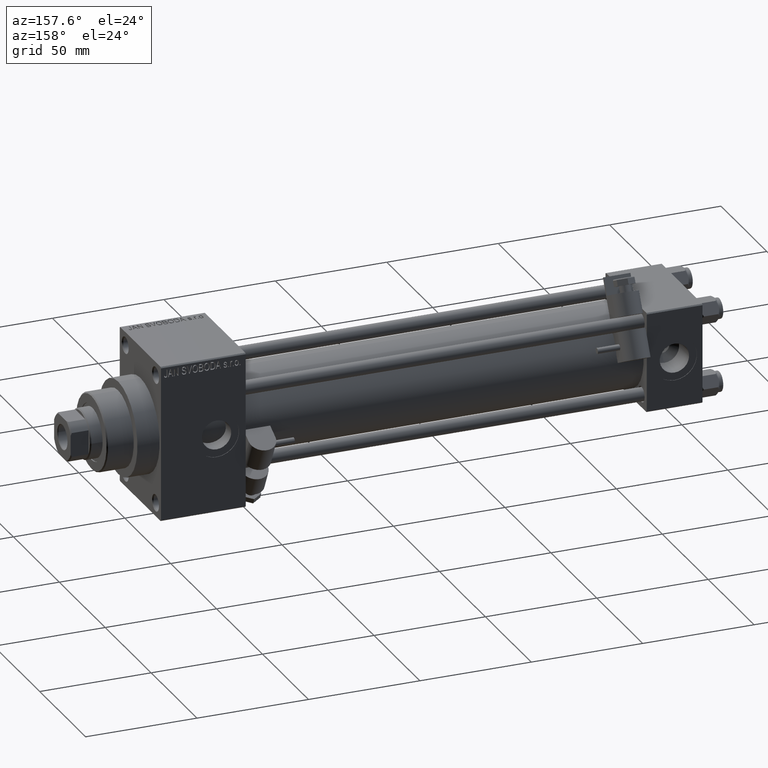
[diagram: clean part render]
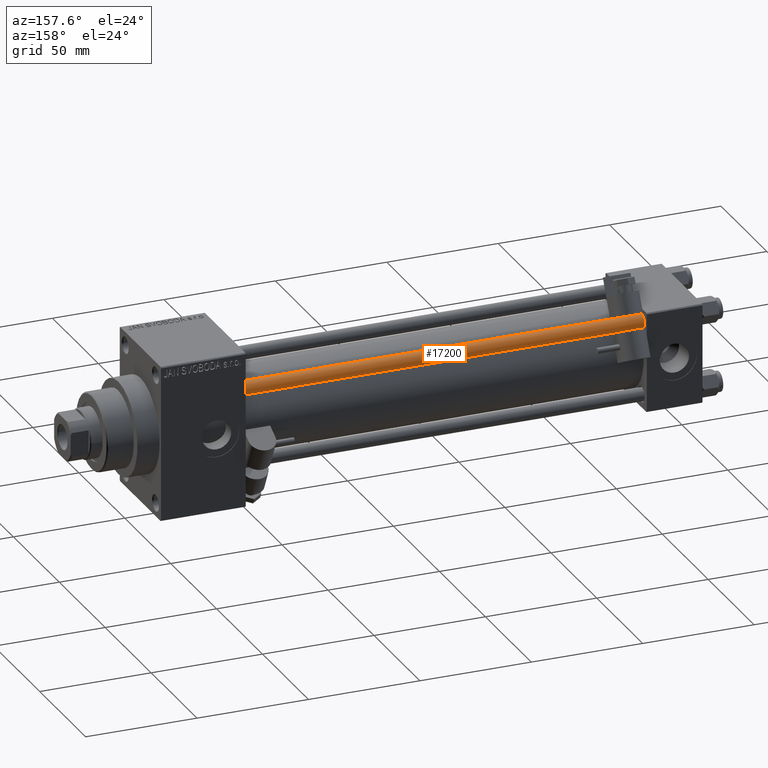
[diagram: same view with one face highlighted and labeled with its STEP entity id]
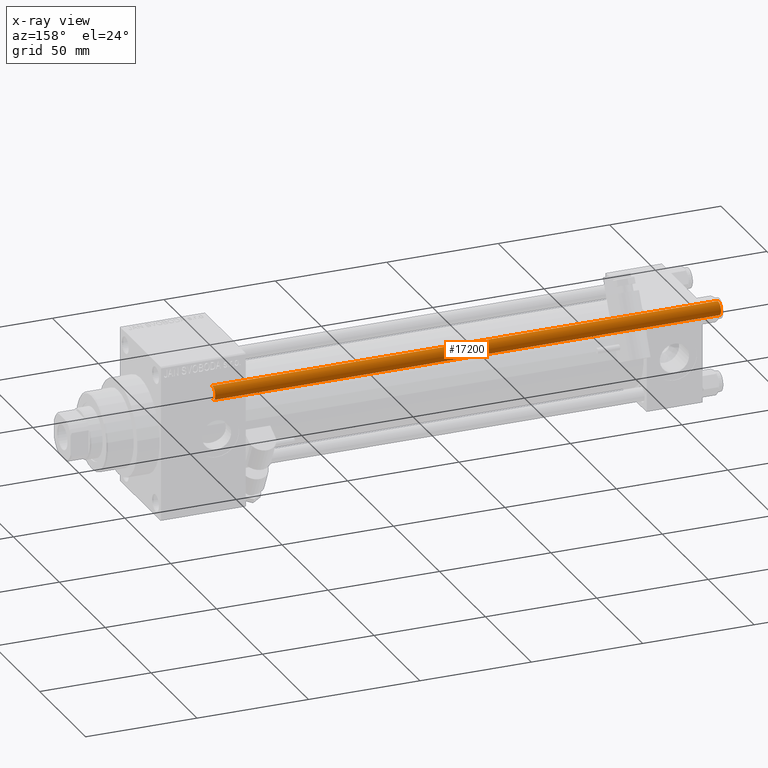
[diagram: x-ray of the same camera — body ghosted, the highlighted face saturated]
A machine part, auxiliary view. The second image highlights one B-rep face of the part: STEP entity #17200.
The next image is the same camera in x-ray: the body ghosted, the highlighted face saturated — about 0% of this face is hidden behind the body in this view.
In plain terms, the highlighted cylindrical surface (edge-blend (fillet) strip) has radius 3 mm, axis along (-1, -0, 0).
Its self-contained STEP definition (entity closure, byte-faithful):
#346 = DIRECTION ( 'NONE',  ( -0.000000000000000000, -0.000000000000000000, 1.000000000000000000 ) ) ;
#1434 = CIRCLE ( 'NONE', #29756, 3.000000000000000444 ) ;
#2759 = FACE_OUTER_BOUND ( 'NONE', #46524, .T. ) ;
#4285 = CARTESIAN_POINT ( 'NONE',  ( 0.000000000000000000, 0.000000000000000000, 227.5000000000000853 ) ) ;
#4986 = EDGE_CURVE ( 'NONE', #5074, #45860, #11930, .T. ) ;
#5074 = VERTEX_POINT ( 'NONE', #19017 ) ;
#8182 = DIRECTION ( 'NONE',  ( 1.000000000000000000, 0.000000000000000000, 0.000000000000000000 ) ) ;
#9350 = VECTOR ( 'NONE', #41598, 1000.000000000000000 ) ;
#9722 = ORIENTED_EDGE ( 'NONE', *, *, #4986, .T. ) ;
#10610 = CARTESIAN_POINT ( 'NONE',  ( 0.000000000000000000, 0.000000000000000000, 228.0000000000000000 ) ) ;
#10737 = VERTEX_POINT ( 'NONE', #21495 ) ;
#11108 = AXIS2_PLACEMENT_3D ( 'NONE', #4285, #45872, #19227 ) ;
#11537 = VECTOR ( 'NONE', #27370, 1000.000000000000000 ) ;
#11930 = LINE ( 'NONE', #49717, #11537 ) ;
#14614 = ORIENTED_EDGE ( 'NONE', *, *, #27006, .F. ) ;
#15483 = CARTESIAN_POINT ( 'NONE',  ( -3.000000000000000444, 0.000000000000000000, 228.0000000000000000 ) ) ;
#17200 = ADVANCED_FACE ( 'NONE', ( #2759 ), #25561, .T. ) ;
#18093 = ORIENTED_EDGE ( 'NONE', *, *, #42182, .T. ) ;
#19017 = CARTESIAN_POINT ( 'NONE',  ( 3.000000000000000444, 3.673940397442059868E-16, 227.5000000000000853 ) ) ;
#19227 = DIRECTION ( 'NONE',  ( 1.000000000000000000, 0.000000000000000000, 0.000000000000000000 ) ) ;
#21495 = CARTESIAN_POINT ( 'NONE',  ( -3.000000000000000444, 0.000000000000000000, 0.5000000000001114664 ) ) ;
#25561 = CYLINDRICAL_SURFACE ( 'NONE', #46363, 3.000000000000000444 ) ;
#26058 = DIRECTION ( 'NONE',  ( -1.000000000000000000, 0.000000000000000000, 0.000000000000000000 ) ) ;
#27006 = EDGE_CURVE ( 'NONE', #35881, #10737, #42357, .T. ) ;
#27370 = DIRECTION ( 'NONE',  ( -0.000000000000000000, -0.000000000000000000, -1.000000000000000000 ) ) ;
#29756 = AXIS2_PLACEMENT_3D ( 'NONE', #32248, #346, #8182 ) ;
#32248 = CARTESIAN_POINT ( 'NONE',  ( 0.000000000000000000, 0.000000000000000000, 0.5000000000001114664 ) ) ;
#32341 = EDGE_CURVE ( 'NONE', #45860, #10737, #1434, .T. ) ;
#35881 = VERTEX_POINT ( 'NONE', #45650 ) ;
#39840 = DIRECTION ( 'NONE',  ( -0.000000000000000000, -0.000000000000000000, -1.000000000000000000 ) ) ;
#41598 = DIRECTION ( 'NONE',  ( -0.000000000000000000, -0.000000000000000000, -1.000000000000000000 ) ) ;
#42182 = EDGE_CURVE ( 'NONE', #35881, #5074, #48397, .T. ) ;
#42357 = LINE ( 'NONE', #15483, #9350 ) ;
#43019 = CARTESIAN_POINT ( 'NONE',  ( 3.000000000000000444, 3.673940397442059868E-16, 0.5000000000001114664 ) ) ;
#45650 = CARTESIAN_POINT ( 'NONE',  ( -3.000000000000000444, 0.000000000000000000, 227.5000000000000853 ) ) ;
#45860 = VERTEX_POINT ( 'NONE', #43019 ) ;
#45872 = DIRECTION ( 'NONE',  ( 0.000000000000000000, 0.000000000000000000, -1.000000000000000000 ) ) ;
#46363 = AXIS2_PLACEMENT_3D ( 'NONE', #10610, #39840, #26058 ) ;
#46524 = EDGE_LOOP ( 'NONE', ( #18093, #9722, #48447, #14614 ) ) ;
#48397 = CIRCLE ( 'NONE', #11108, 3.000000000000000444 ) ;
#48447 = ORIENTED_EDGE ( 'NONE', *, *, #32341, .T. ) ;
#49717 = CARTESIAN_POINT ( 'NONE',  ( 3.000000000000000444, 3.673940397442059868E-16, 228.0000000000000000 ) ) ;